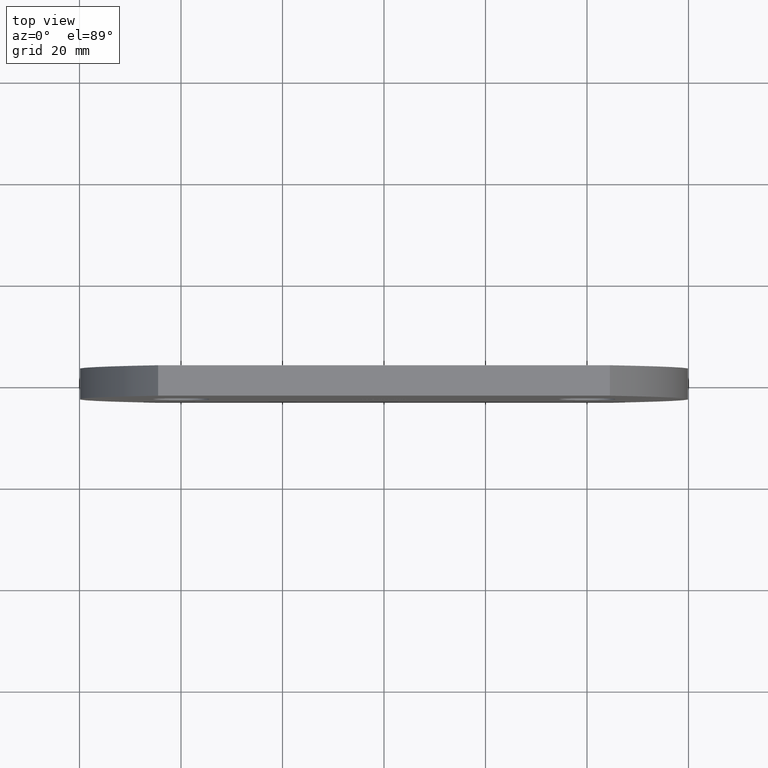
[diagram: clean part render]
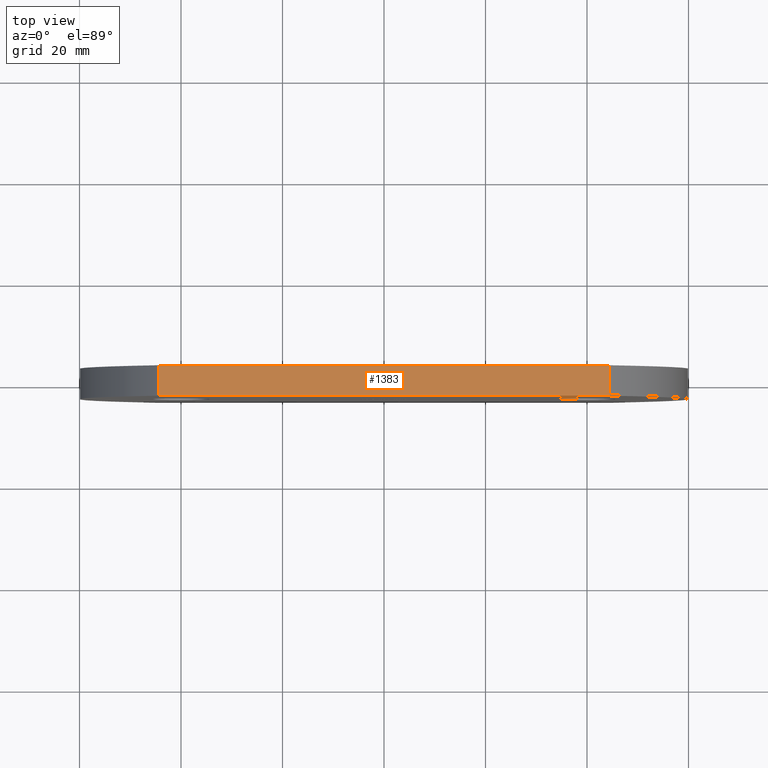
[diagram: same view with one face highlighted and labeled with its STEP entity id]
A machine part, top view. The second image highlights one B-rep face of the part: STEP entity #1383.
In plain terms, the highlighted planar face has unit normal (0, 0, -1).
Its self-contained STEP definition (entity closure, byte-faithful):
#265 = CARTESIAN_POINT ( 'NONE',  ( -44.50000000000000711, 3.000000000000000000, 40.00000000000000000 ) ) ;
#1097 = VECTOR ( 'NONE', #10356, 1000.000000000000000 ) ;
#1383 = ADVANCED_FACE ( 'NONE', ( #4632 ), #8677, .F. ) ;
#1399 = VECTOR ( 'NONE', #2633, 1000.000000000000000 ) ;
#1497 = VECTOR ( 'NONE', #9737, 1000.000000000000000 ) ;
#2439 = AXIS2_PLACEMENT_3D ( 'NONE', #265, #7072, #9503 ) ;
#2559 = CARTESIAN_POINT ( 'NONE',  ( -44.50000000000000711, -3.000000000000000000, 40.00000000000000000 ) ) ;
#2633 = DIRECTION ( 'NONE',  ( 1.000000000000000000, 0.000000000000000000, 3.118604001756057919E-16 ) ) ;
#3400 = LINE ( 'NONE', #6841, #1097 ) ;
#4100 = LINE ( 'NONE', #2559, #6634 ) ;
#4570 = CARTESIAN_POINT ( 'NONE',  ( 44.50000000000000000, -3.000000000000000000, 40.00000000000001421 ) ) ;
#4632 = FACE_OUTER_BOUND ( 'NONE', #5694, .T. ) ;
#5348 = VERTEX_POINT ( 'NONE', #6297 ) ;
#5694 = EDGE_LOOP ( 'NONE', ( #7987, #7416, #8128, #6546 ) ) ;
#5882 = VERTEX_POINT ( 'NONE', #9377 ) ;
#6030 = DIRECTION ( 'NONE',  ( 1.000000000000000000, 0.000000000000000000, 3.118604001756057919E-16 ) ) ;
#6297 = CARTESIAN_POINT ( 'NONE',  ( -44.50000000000000711, 3.000000000000000000, 40.00000000000000000 ) ) ;
#6419 = CARTESIAN_POINT ( 'NONE',  ( 44.50000000000000000, 3.000000000000000000, 40.00000000000001421 ) ) ;
#6546 = ORIENTED_EDGE ( 'NONE', *, *, #8872, .T. ) ;
#6634 = VECTOR ( 'NONE', #6030, 1000.000000000000000 ) ;
#6721 = EDGE_CURVE ( 'NONE', #9328, #8341, #4100, .T. ) ;
#6841 = CARTESIAN_POINT ( 'NONE',  ( -44.50000000000000711, 3.000000000000000000, 40.00000000000000000 ) ) ;
#7072 = DIRECTION ( 'NONE',  ( 3.118604001756057919E-16, 0.000000000000000000, -1.000000000000000000 ) ) ;
#7416 = ORIENTED_EDGE ( 'NONE', *, *, #10271, .F. ) ;
#7636 = EDGE_CURVE ( 'NONE', #5348, #5882, #7791, .T. ) ;
#7791 = LINE ( 'NONE', #8420, #1399 ) ;
#7987 = ORIENTED_EDGE ( 'NONE', *, *, #6721, .T. ) ;
#8128 = ORIENTED_EDGE ( 'NONE', *, *, #7636, .F. ) ;
#8341 = VERTEX_POINT ( 'NONE', #4570 ) ;
#8420 = CARTESIAN_POINT ( 'NONE',  ( -44.50000000000000711, 3.000000000000000000, 40.00000000000000000 ) ) ;
#8677 = PLANE ( 'NONE',  #2439 ) ;
#8872 = EDGE_CURVE ( 'NONE', #5348, #9328, #3400, .T. ) ;
#9328 = VERTEX_POINT ( 'NONE', #9705 ) ;
#9377 = CARTESIAN_POINT ( 'NONE',  ( 44.50000000000000000, 3.000000000000000000, 40.00000000000001421 ) ) ;
#9503 = DIRECTION ( 'NONE',  ( -1.000000000000000000, 0.000000000000000000, -3.118604001756057919E-16 ) ) ;
#9705 = CARTESIAN_POINT ( 'NONE',  ( -44.50000000000000711, -3.000000000000000000, 40.00000000000000000 ) ) ;
#9737 = DIRECTION ( 'NONE',  ( -0.000000000000000000, -1.000000000000000000, -0.000000000000000000 ) ) ;
#10271 = EDGE_CURVE ( 'NONE', #5882, #8341, #10556, .T. ) ;
#10356 = DIRECTION ( 'NONE',  ( -0.000000000000000000, -1.000000000000000000, -0.000000000000000000 ) ) ;
#10556 = LINE ( 'NONE', #6419, #1497 ) ;